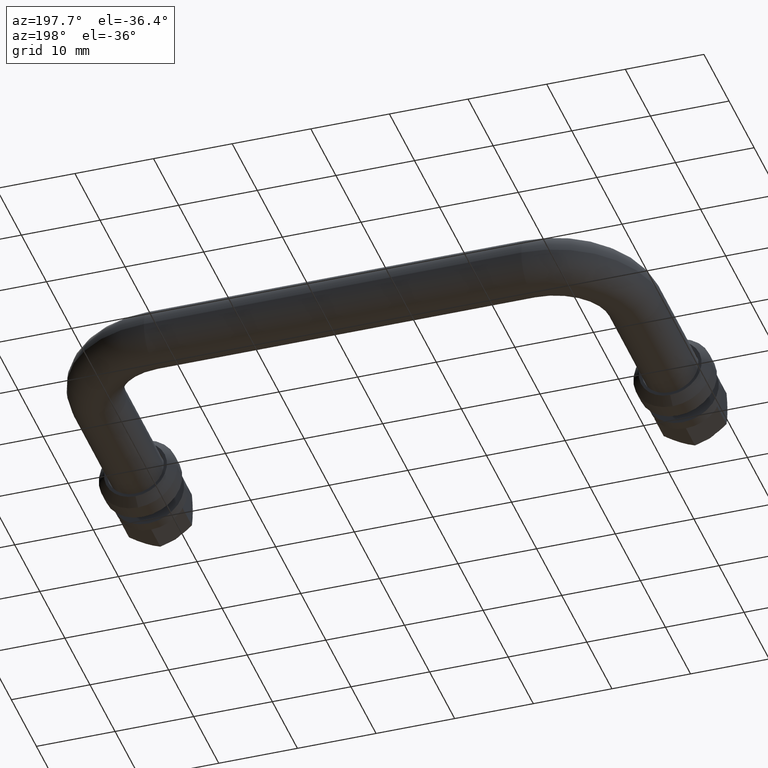
[diagram: clean part render]
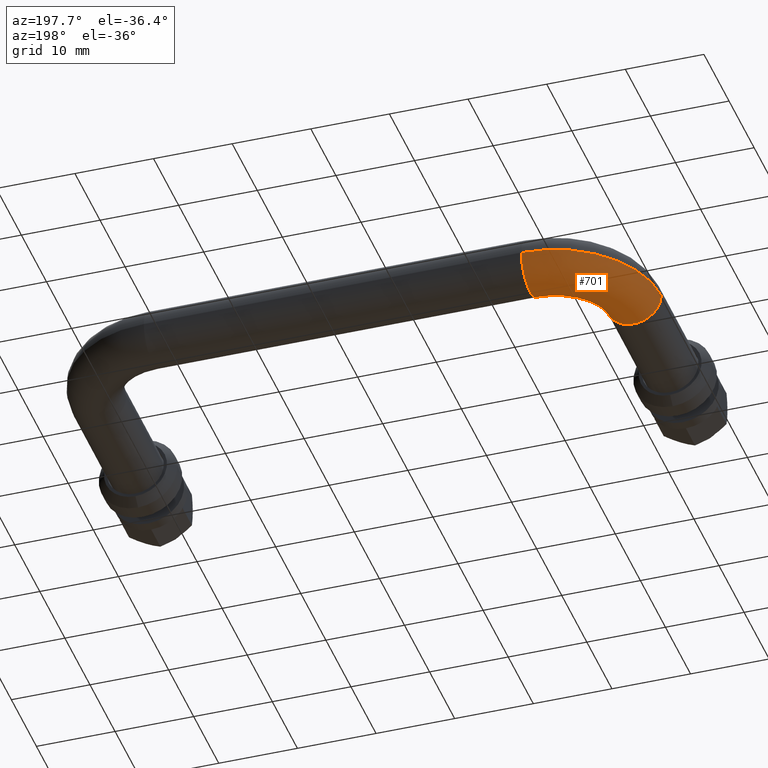
[diagram: same view with one face highlighted and labeled with its STEP entity id]
A machine part, auxiliary view. The second image highlights one B-rep face of the part: STEP entity #701.
In plain terms, the highlighted toroidal blend (fillet) surface has major radius 10 mm and minor (blend) radius 3.5 mm.
Its self-contained STEP definition (entity closure, byte-faithful):
#25 = DIRECTION ( 'NONE',  ( -0.0000000000000000000, -0.0000000000000000000, -1.000000000000000000 ) ) ;
#54 = VERTEX_POINT ( 'NONE', #515 ) ;
#161 = EDGE_CURVE ( 'NONE', #351, #54, #181, .T. ) ;
#181 = CIRCLE ( 'NONE', #375, 3.500000000000000000 ) ;
#218 = CARTESIAN_POINT ( 'NONE',  ( -23.99999999999999600, 16.50000000000000000, 0.0000000000000000000 ) ) ;
#266 = AXIS2_PLACEMENT_3D ( 'NONE', #505, #1465, #647 ) ;
#318 = CIRCLE ( 'NONE', #266, 3.500000000000000000 ) ;
#330 = CARTESIAN_POINT ( 'NONE',  ( -30.50000000000000400, 16.50000000000001100, 0.0000000000000000000 ) ) ;
#351 = VERTEX_POINT ( 'NONE', #330 ) ;
#375 = AXIS2_PLACEMENT_3D ( 'NONE', #605, #889, #1129 ) ;
#396 = DIRECTION ( 'NONE',  ( -0.0000000000000000000, -0.0000000000000000000, -1.000000000000000000 ) ) ;
#397 = VERTEX_POINT ( 'NONE', #1059 ) ;
#505 = CARTESIAN_POINT ( 'NONE',  ( -23.99999999999998600, 26.50000000000000400, 0.0000000000000000000 ) ) ;
#515 = CARTESIAN_POINT ( 'NONE',  ( -37.50000000000000700, 16.50000000000001100, 4.286263797015732700E-016 ) ) ;
#529 = AXIS2_PLACEMENT_3D ( 'NONE', #218, #909, #903 ) ;
#605 = CARTESIAN_POINT ( 'NONE',  ( -34.00000000000000000, 16.50000000000001100, 0.0000000000000000000 ) ) ;
#643 = ORIENTED_EDGE ( 'NONE', *, *, #1633, .F. ) ;
#647 = DIRECTION ( 'NONE',  ( 0.0000000000000000000, 0.0000000000000000000, 1.000000000000000000 ) ) ;
#701 = ADVANCED_FACE ( 'NONE', ( #1357 ), #1030, .T. ) ;
#712 = ORIENTED_EDGE ( 'NONE', *, *, #161, .T. ) ;
#873 = CARTESIAN_POINT ( 'NONE',  ( -23.99999999999999600, 16.50000000000000000, 4.286263797015736600E-016 ) ) ;
#889 = DIRECTION ( 'NONE',  ( 0.0000000000000000000, 1.000000000000000000, 0.0000000000000000000 ) ) ;
#903 = DIRECTION ( 'NONE',  ( -1.000000000000000000, 0.0000000000000000000, 0.0000000000000000000 ) ) ;
#909 = DIRECTION ( 'NONE',  ( -0.0000000000000000000, -0.0000000000000000000, -1.000000000000000000 ) ) ;
#1012 = DIRECTION ( 'NONE',  ( -1.000000000000000000, 0.0000000000000000000, 0.0000000000000000000 ) ) ;
#1021 = ORIENTED_EDGE ( 'NONE', *, *, #1441, .F. ) ;
#1030 = TOROIDAL_SURFACE ( 'NONE', #529, 10.00000000000000500, 3.500000000000000000 ) ;
#1059 = CARTESIAN_POINT ( 'NONE',  ( -23.99999999999998600, 30.00000000000000400, 0.0000000000000000000 ) ) ;
#1129 = DIRECTION ( 'NONE',  ( 0.0000000000000000000, 0.0000000000000000000, 1.000000000000000000 ) ) ;
#1225 = CARTESIAN_POINT ( 'NONE',  ( -23.99999999999999600, 16.50000000000000000, 0.0000000000000000000 ) ) ;
#1278 = EDGE_LOOP ( 'NONE', ( #712, #1315, #1021, #643 ) ) ;
#1315 = ORIENTED_EDGE ( 'NONE', *, *, #1800, .T. ) ;
#1357 = FACE_OUTER_BOUND ( 'NONE', #1278, .T. ) ;
#1361 = DIRECTION ( 'NONE',  ( -1.000000000000000000, 0.0000000000000000000, 0.0000000000000000000 ) ) ;
#1441 = EDGE_CURVE ( 'NONE', #1636, #397, #318, .T. ) ;
#1465 = DIRECTION ( 'NONE',  ( 1.000000000000000000, 6.123233995736766000E-017, 0.0000000000000000000 ) ) ;
#1511 = AXIS2_PLACEMENT_3D ( 'NONE', #873, #25, #1012 ) ;
#1542 = CIRCLE ( 'NONE', #1796, 13.50000000000000900 ) ;
#1548 = CARTESIAN_POINT ( 'NONE',  ( -23.99999999999998600, 23.00000000000000400, 4.286263797015741000E-016 ) ) ;
#1633 = EDGE_CURVE ( 'NONE', #351, #1636, #1731, .T. ) ;
#1636 = VERTEX_POINT ( 'NONE', #1548 ) ;
#1731 = CIRCLE ( 'NONE', #1511, 6.500000000000005300 ) ;
#1796 = AXIS2_PLACEMENT_3D ( 'NONE', #1225, #396, #1361 ) ;
#1800 = EDGE_CURVE ( 'NONE', #54, #397, #1542, .T. ) ;